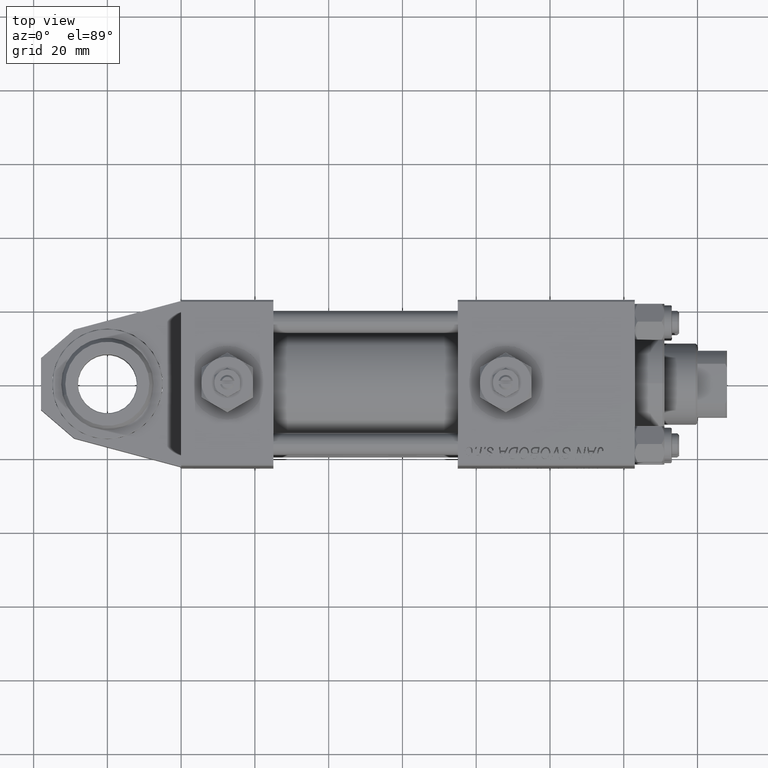
[diagram: clean part render]
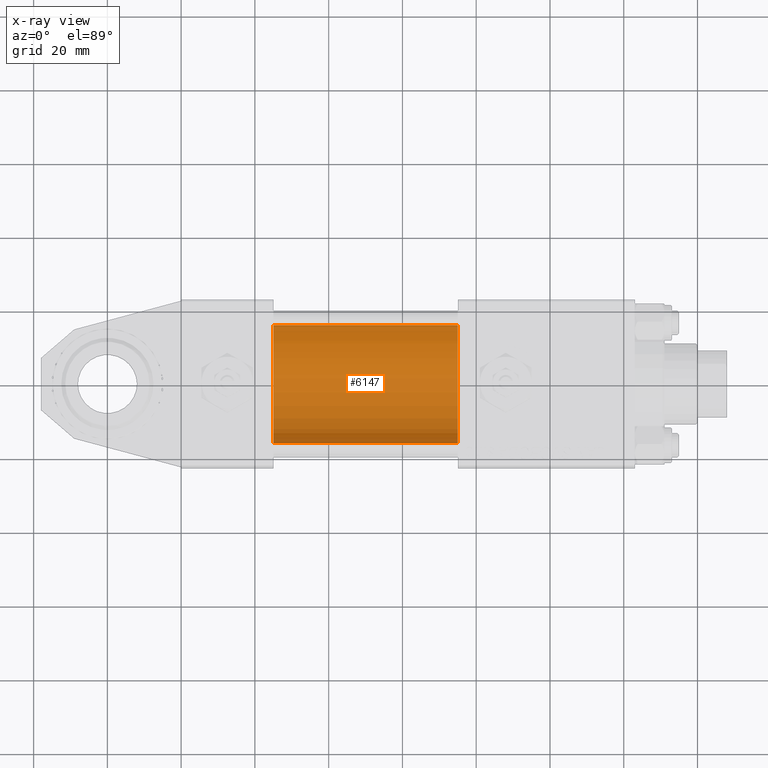
[diagram: x-ray — body ghosted, one internal face saturated and labeled with its STEP entity id]
A machine part, top view, then the same camera in x-ray: the body is ghosted and one INTERNAL B-rep face — a face not visible from any outside direction — is saturated and labeled: STEP entity #6147.
In plain terms, the highlighted cylindrical surface (partial cylindrical patch) has radius 16 mm, axis along (-1, 0, -0).
Its self-contained STEP definition (entity closure, byte-faithful):
#1585 = CARTESIAN_POINT ( 'NONE',  ( 25.00000000000000000, -6.426503353294456087E-16, -16.00000000000000000 ) ) ;
#1903 = DIRECTION ( 'NONE',  ( 1.000000000000000000, 0.000000000000000000, 0.000000000000000000 ) ) ;
#4567 = VECTOR ( 'NONE', #37988, 1000.000000000000000 ) ;
#6147 = ADVANCED_FACE ( 'NONE', ( #37598 ), #25464, .F. ) ;
#6847 = VECTOR ( 'NONE', #52172, 1000.000000000000000 ) ;
#7586 = CARTESIAN_POINT ( 'NONE',  ( 75.00000000000001421, -6.426503353294456087E-16, -16.00000000000000000 ) ) ;
#8607 = ORIENTED_EDGE ( 'NONE', *, *, #17996, .F. ) ;
#12564 = DIRECTION ( 'NONE',  ( 1.000000000000000000, 0.000000000000000000, 0.000000000000000000 ) ) ;
#12820 = DIRECTION ( 'NONE',  ( 0.000000000000000000, 0.000000000000000000, 1.000000000000000000 ) ) ;
#16284 = VERTEX_POINT ( 'NONE', #7586 ) ;
#17996 = EDGE_CURVE ( 'NONE', #30151, #24226, #24647, .T. ) ;
#18444 = LINE ( 'NONE', #50394, #4567 ) ;
#18885 = CIRCLE ( 'NONE', #33183, 16.00000000000000000 ) ;
#18917 = ORIENTED_EDGE ( 'NONE', *, *, #22437, .T. ) ;
#22437 = EDGE_CURVE ( 'NONE', #16284, #24226, #18444, .T. ) ;
#23073 = EDGE_CURVE ( 'NONE', #34776, #16284, #18885, .T. ) ;
#24226 = VERTEX_POINT ( 'NONE', #1585 ) ;
#24647 = CIRCLE ( 'NONE', #40677, 16.00000000000000000 ) ;
#25464 = CYLINDRICAL_SURFACE ( 'NONE', #29404, 16.00000000000000000 ) ;
#28407 = ORIENTED_EDGE ( 'NONE', *, *, #48672, .F. ) ;
#29404 = AXIS2_PLACEMENT_3D ( 'NONE', #41571, #33367, #12820 ) ;
#30151 = VERTEX_POINT ( 'NONE', #48989 ) ;
#30584 = EDGE_LOOP ( 'NONE', ( #34189, #18917, #8607, #28407 ) ) ;
#32350 = CARTESIAN_POINT ( 'NONE',  ( 75.00000000000001421, -2.602085213965210642E-15, 16.00000000000000000 ) ) ;
#33183 = AXIS2_PLACEMENT_3D ( 'NONE', #50468, #1903, #42300 ) ;
#33367 = DIRECTION ( 'NONE',  ( -1.000000000000000000, -0.000000000000000000, -0.000000000000000000 ) ) ;
#34189 = ORIENTED_EDGE ( 'NONE', *, *, #23073, .T. ) ;
#34776 = VERTEX_POINT ( 'NONE', #38985 ) ;
#36317 = LINE ( 'NONE', #32350, #6847 ) ;
#37092 = CARTESIAN_POINT ( 'NONE',  ( 25.00000000000000000, -2.602085213965210642E-15, 0.000000000000000000 ) ) ;
#37598 = FACE_OUTER_BOUND ( 'NONE', #30584, .T. ) ;
#37988 = DIRECTION ( 'NONE',  ( -1.000000000000000000, -0.000000000000000000, -0.000000000000000000 ) ) ;
#38985 = CARTESIAN_POINT ( 'NONE',  ( 75.00000000000001421, -2.602085213965210642E-15, 16.00000000000000000 ) ) ;
#40677 = AXIS2_PLACEMENT_3D ( 'NONE', #37092, #12564, #45790 ) ;
#41571 = CARTESIAN_POINT ( 'NONE',  ( 75.00000000000001421, -2.602085213965210642E-15, 0.000000000000000000 ) ) ;
#42300 = DIRECTION ( 'NONE',  ( 0.000000000000000000, 0.000000000000000000, -1.000000000000000000 ) ) ;
#45790 = DIRECTION ( 'NONE',  ( 0.000000000000000000, 0.000000000000000000, -1.000000000000000000 ) ) ;
#48672 = EDGE_CURVE ( 'NONE', #34776, #30151, #36317, .T. ) ;
#48989 = CARTESIAN_POINT ( 'NONE',  ( 25.00000000000000000, -2.602085213965210642E-15, 16.00000000000000000 ) ) ;
#50394 = CARTESIAN_POINT ( 'NONE',  ( 75.00000000000001421, -6.426503353294456087E-16, -16.00000000000000000 ) ) ;
#50468 = CARTESIAN_POINT ( 'NONE',  ( 75.00000000000001421, -2.602085213965210642E-15, 0.000000000000000000 ) ) ;
#52172 = DIRECTION ( 'NONE',  ( -1.000000000000000000, -0.000000000000000000, -0.000000000000000000 ) ) ;